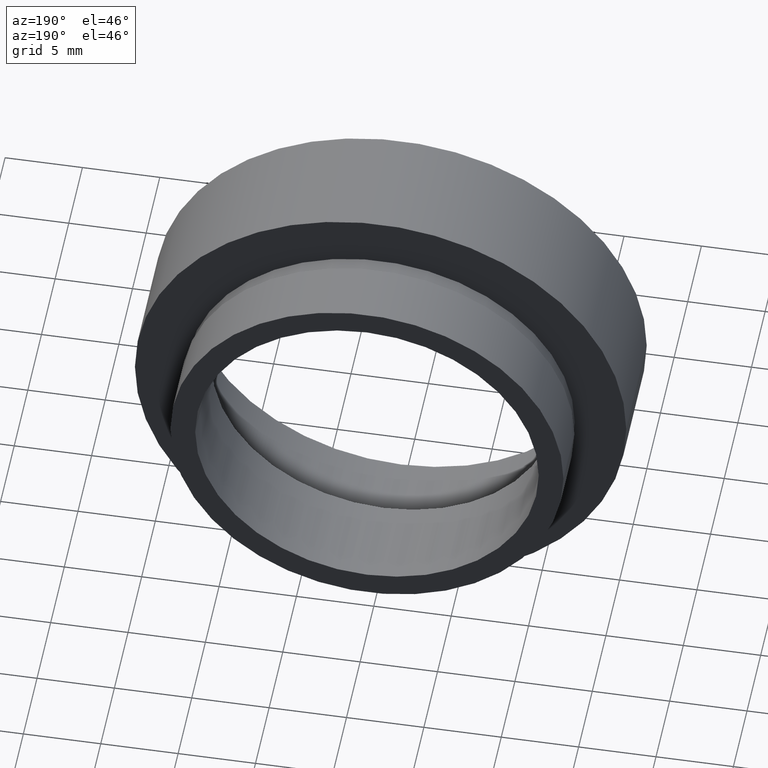
[diagram: clean part render]
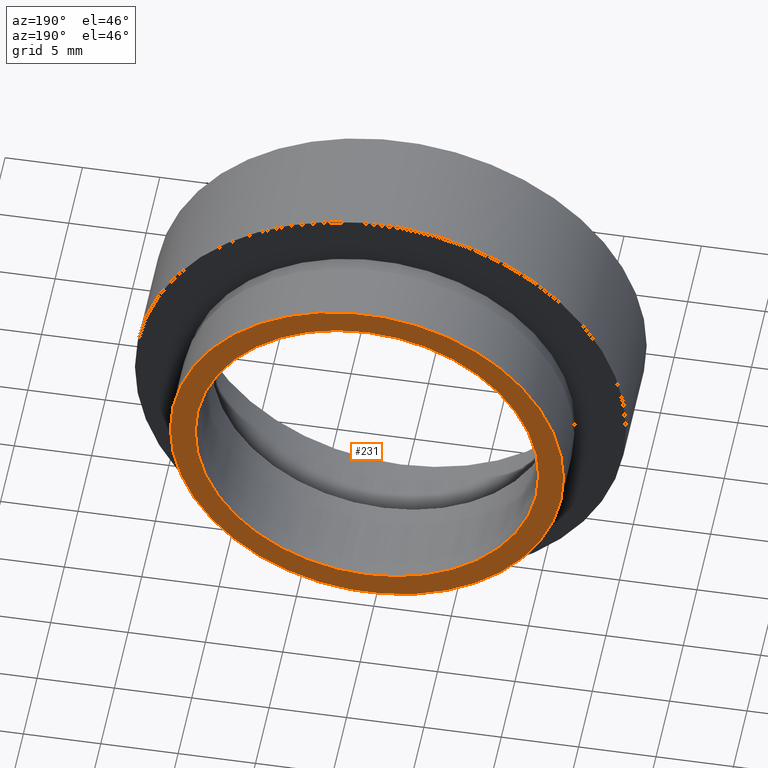
[diagram: same view with one face highlighted and labeled with its STEP entity id]
A machine part, auxiliary view. The second image highlights one B-rep face of the part: STEP entity #231.
In plain terms, the highlighted planar face has unit normal (0, -1, 0).
Its self-contained STEP definition (entity closure, byte-faithful):
#7 = PLANE ( 'NONE',  #384 ) ;
#17 = CARTESIAN_POINT ( 'NONE',  ( 5.371323195044474300E-016, 12.49999999999999600, 0.0000000000000000000 ) ) ;
#35 = CIRCLE ( 'NONE', #359, 11.10000000000000100 ) ;
#37 = DIRECTION ( 'NONE',  ( 1.000000000000000000, 1.224646799147351000E-016, 0.0000000000000000000 ) ) ;
#38 = CARTESIAN_POINT ( 'NONE',  ( -11.10000000000000100, 12.49999999999999500, 0.0000000000000000000 ) ) ;
#43 = DIRECTION ( 'NONE',  ( -1.000000000000000000, -1.562813942321447500E-016, 0.0000000000000000000 ) ) ;
#51 = CARTESIAN_POINT ( 'NONE',  ( 5.371323195044474300E-016, 12.49999999999999600, 0.0000000000000000000 ) ) ;
#56 = DIRECTION ( 'NONE',  ( -1.224646799147351000E-016, 1.000000000000000000, -0.0000000000000000000 ) ) ;
#68 = AXIS2_PLACEMENT_3D ( 'NONE', #51, #518, #43 ) ;
#77 = VERTEX_POINT ( 'NONE', #515 ) ;
#99 = CARTESIAN_POINT ( 'NONE',  ( 11.10000000000000100, 12.49999999999999800, 0.0000000000000000000 ) ) ;
#109 = AXIS2_PLACEMENT_3D ( 'NONE', #516, #56, #258 ) ;
#162 = AXIS2_PLACEMENT_3D ( 'NONE', #17, #369, #566 ) ;
#177 = EDGE_CURVE ( 'NONE', #77, #483, #35, .T. ) ;
#204 = CARTESIAN_POINT ( 'NONE',  ( 5.371323195044474300E-016, 12.49999999999999600, 0.0000000000000000000 ) ) ;
#229 = ORIENTED_EDGE ( 'NONE', *, *, #257, .F. ) ;
#230 = DIRECTION ( 'NONE',  ( -1.000000000000000000, -1.562813942321447500E-016, 0.0000000000000000000 ) ) ;
#231 = ADVANCED_FACE ( 'NONE', ( #376, #519 ), #7, .F. ) ;
#257 = EDGE_CURVE ( 'NONE', #483, #77, #463, .T. ) ;
#258 = DIRECTION ( 'NONE',  ( -1.000000000000000000, -1.365923996832131600E-016, 0.0000000000000000000 ) ) ;
#270 = EDGE_LOOP ( 'NONE', ( #339, #608 ) ) ;
#286 = CARTESIAN_POINT ( 'NONE',  ( 12.69999999999999900, 12.49999999999999800, 1.555301434917138400E-015 ) ) ;
#299 = VERTEX_POINT ( 'NONE', #555 ) ;
#312 = DIRECTION ( 'NONE',  ( -1.224646799147351000E-016, 1.000000000000000000, -0.0000000000000000000 ) ) ;
#316 = EDGE_CURVE ( 'NONE', #338, #299, #355, .T. ) ;
#338 = VERTEX_POINT ( 'NONE', #286 ) ;
#339 = ORIENTED_EDGE ( 'NONE', *, *, #473, .T. ) ;
#355 = CIRCLE ( 'NONE', #162, 12.69999999999999900 ) ;
#359 = AXIS2_PLACEMENT_3D ( 'NONE', #204, #312, #230 ) ;
#369 = DIRECTION ( 'NONE',  ( -1.224646799147351000E-016, 1.000000000000000000, -0.0000000000000000000 ) ) ;
#376 = FACE_BOUND ( 'NONE', #379, .T. ) ;
#379 = EDGE_LOOP ( 'NONE', ( #229, #398 ) ) ;
#384 = AXIS2_PLACEMENT_3D ( 'NONE', #99, #622, #37 ) ;
#398 = ORIENTED_EDGE ( 'NONE', *, *, #177, .F. ) ;
#463 = CIRCLE ( 'NONE', #68, 11.10000000000000100 ) ;
#473 = EDGE_CURVE ( 'NONE', #299, #338, #580, .T. ) ;
#483 = VERTEX_POINT ( 'NONE', #38 ) ;
#515 = CARTESIAN_POINT ( 'NONE',  ( 11.10000000000000100, 12.49999999999999800, 1.359357947053562400E-015 ) ) ;
#516 = CARTESIAN_POINT ( 'NONE',  ( 5.371323195044474300E-016, 12.49999999999999600, 0.0000000000000000000 ) ) ;
#518 = DIRECTION ( 'NONE',  ( -1.224646799147351000E-016, 1.000000000000000000, -0.0000000000000000000 ) ) ;
#519 = FACE_OUTER_BOUND ( 'NONE', #270, .T. ) ;
#555 = CARTESIAN_POINT ( 'NONE',  ( -12.69999999999999900, 12.49999999999999500, 0.0000000000000000000 ) ) ;
#566 = DIRECTION ( 'NONE',  ( -1.000000000000000000, -1.365923996832131600E-016, 0.0000000000000000000 ) ) ;
#580 = CIRCLE ( 'NONE', #109, 12.69999999999999900 ) ;
#608 = ORIENTED_EDGE ( 'NONE', *, *, #316, .T. ) ;
#622 = DIRECTION ( 'NONE',  ( 1.224646799147351000E-016, -1.000000000000000000, 0.0000000000000000000 ) ) ;